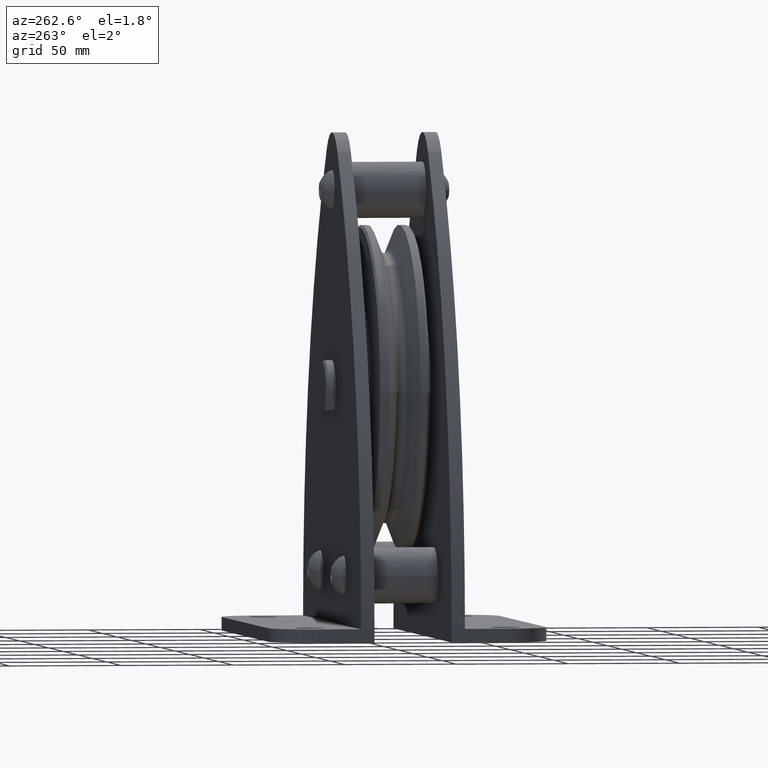
[diagram: clean part render]
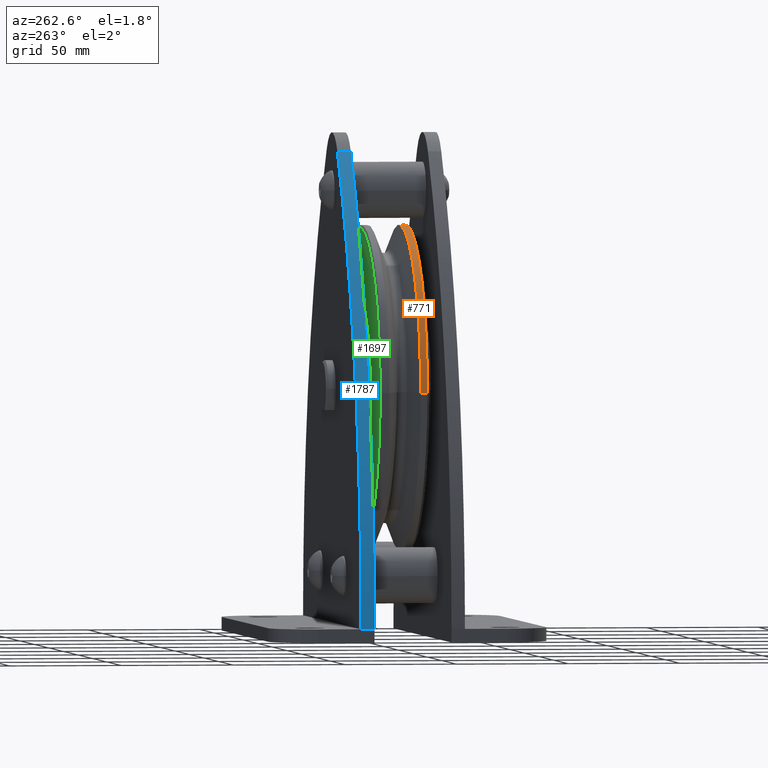
[diagram: same view with three faces highlighted in distinct colors, each labeled with its STEP entity id]
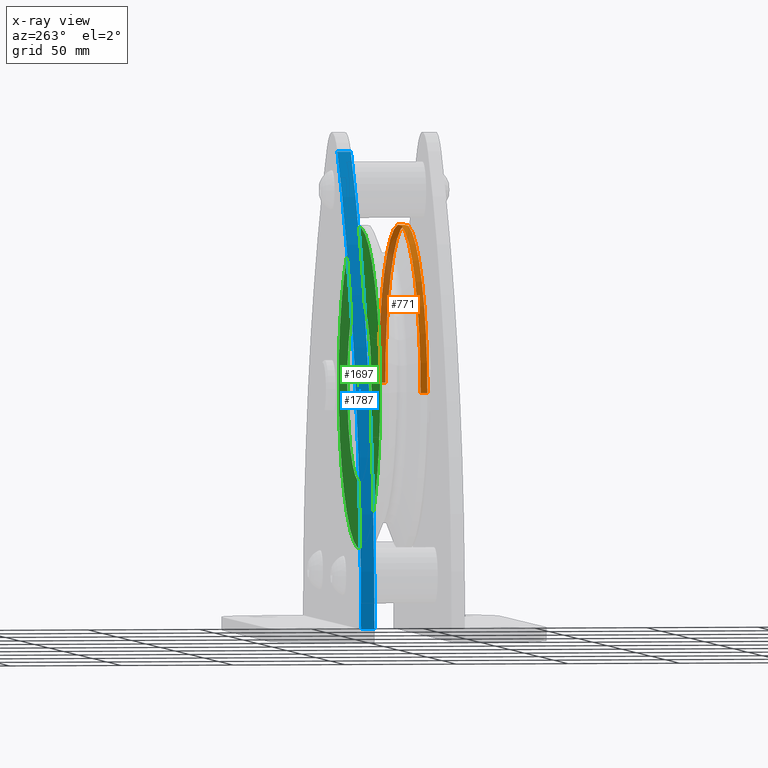
[diagram: x-ray of the same camera — body ghosted, the three highlighted faces saturated]
A machine part, auxiliary view with three faces highlighted in distinct colors.
The next image is the same camera in x-ray (body ghosted, the three faces saturated) — at least one of them is partly hidden behind the body in this view.
Their STEP definitions:

[orange] entity #771 — the highlighted cylindrical surface (partial cylindrical patch) has radius 72.5 mm, axis along (0, -1, 0).
#771=ADVANCED_FACE('',(#2164),#2165,.T.);
#2164=FACE_OUTER_BOUND('',#4270,.T.);
#2165=CYLINDRICAL_SURFACE('',#4271,72.5);
#4270=EDGE_LOOP('',(#6589,#6590,#6591,#6592));
#4271=AXIS2_PLACEMENT_3D('',#6593,#6594,#6595);
#6589=ORIENTED_EDGE('',*,*,#12768,.F.);
#6590=ORIENTED_EDGE('',*,*,#12716,.T.);
#6591=ORIENTED_EDGE('',*,*,#12769,.F.);
#6592=ORIENTED_EDGE('',*,*,#12764,.F.);
#6593=CARTESIAN_POINT('',(0.0,-8.490876,0.0));
#6594=DIRECTION('',(0.0,-1.0,0.0));
#6595=DIRECTION('',(1.0,0.0,0.0));
#12716=EDGE_CURVE('',#15322,#15324,#15326,.T.);
#12764=EDGE_CURVE('',#15397,#15400,#15401,.T.);
#12768=EDGE_CURVE('',#15322,#15397,#15406,.T.);
#12769=EDGE_CURVE('',#15400,#15324,#15407,.T.);
#15322=VERTEX_POINT('',#19774);
#15324=VERTEX_POINT('',#19777);
#15326=CIRCLE('',#19780,72.5);
#15397=VERTEX_POINT('',#19865);
#15400=VERTEX_POINT('',#19869);
#15401=CIRCLE('',#19870,72.5);
#15406=LINE('',#19876,#19877);
#15407=LINE('',#19878,#19879);
#19774=CARTESIAN_POINT('',(72.5,-6.981752,0.0));
#19777=CARTESIAN_POINT('',(-72.5,-6.981752,8.87868929381831E-015));
#19780=AXIS2_PLACEMENT_3D('',#26843,#26844,#26845);
#19865=CARTESIAN_POINT('',(72.5,-10.0,0.0));
#19869=CARTESIAN_POINT('',(-72.5,-10.0,8.87868929381831E-015));
#19870=AXIS2_PLACEMENT_3D('',#26924,#26925,#26926);
#19876=CARTESIAN_POINT('',(72.5,-8.490876,-8.87868929381831E-015));
#19877=VECTOR('',#26931,1.0);
#19878=CARTESIAN_POINT('',(-72.5,-8.490876,8.87868929381831E-015));
#19879=VECTOR('',#26932,1.0);
#26843=CARTESIAN_POINT('',(0.0,-6.981752,0.0));
#26844=DIRECTION('',(0.0,-1.0,0.0));
#26845=DIRECTION('',(1.0,0.0,0.0));
#26924=CARTESIAN_POINT('',(0.0,-10.0,0.0));
#26925=DIRECTION('',(0.0,-1.0,0.0));
#26926=DIRECTION('',(1.0,0.0,0.0));
#26931=DIRECTION('',(0.0,-1.0,0.0));
#26932=DIRECTION('',(-0.0,1.0,-0.0));

[blue] entity #1787 — the highlighted cylindrical surface (partial cylindrical patch) has radius 310 mm, axis along (0, 1, 0).
#1787=ADVANCED_FACE('',(#3755),#3756,.T.);
#3755=FACE_OUTER_BOUND('',#5861,.T.);
#3756=CYLINDRICAL_SURFACE('',#5862,309.999999979701);
#5861=EDGE_LOOP('',(#11550,#11551,#11552,#11553));
#5862=AXIS2_PLACEMENT_3D('',#11554,#11555,#11556);
#11550=ORIENTED_EDGE('',*,*,#14667,.T.);
#11551=ORIENTED_EDGE('',*,*,#14697,.F.);
#11552=ORIENTED_EDGE('',*,*,#14698,.T.);
#11553=ORIENTED_EDGE('',*,*,#14694,.T.);
#11554=CARTESIAN_POINT('',(209.999999979701,17.25,-103.9999999978));
#11555=DIRECTION('',(0.0,1.0,0.0));
#11556=DIRECTION('',(-1.0,0.0,-6.97995926336286E-012));
#14667=EDGE_CURVE('',#18207,#18205,#18208,.T.);
#14694=EDGE_CURVE('',#18247,#18207,#18248,.T.);
#14697=EDGE_CURVE('',#18251,#18205,#18252,.T.);
#14698=EDGE_CURVE('',#18251,#18247,#18253,.T.);
#18205=VERTEX_POINT('',#25944);
#18207=VERTEX_POINT('',#25947);
#18208=CIRCLE('',#25948,309.999999979701);
#18247=VERTEX_POINT('',#25999);
#18248=LINE('',#26000,#26001);
#18251=VERTEX_POINT('',#26004);
#18252=LINE('',#26005,#26006);
#18253=CIRCLE('',#26007,309.999999979701);
#25944=CARTESIAN_POINT('',(-100.0,23.25,-104.0));
#25947=CARTESIAN_POINT('',(-18.4210526299208,23.25,105.580110490116));
#25948=AXIS2_PLACEMENT_3D('',#29028,#29029,#29030);
#25999=CARTESIAN_POINT('',(-18.4210526299208,17.25,105.580110490116));
#26000=CARTESIAN_POINT('',(-18.4210526299208,17.25,105.580110490116));
#26001=VECTOR('',#29064,1.0);
#26004=CARTESIAN_POINT('',(-100.0,17.25,-104.0));
#26005=CARTESIAN_POINT('',(-100.0,17.25,-104.0));
#26006=VECTOR('',#29068,1.0);
#26007=AXIS2_PLACEMENT_3D('',#29069,#29070,#29071);
#29028=CARTESIAN_POINT('',(209.999999979701,23.25,-103.9999999978));
#29029=DIRECTION('',(0.0,-1.0,-0.0));
#29030=DIRECTION('',(-1.0,0.0,-6.97995926336286E-012));
#29064=DIRECTION('',(0.0,1.0,0.0));
#29068=DIRECTION('',(0.0,1.0,0.0));
#29069=CARTESIAN_POINT('',(209.999999979701,17.25,-103.9999999978));
#29070=DIRECTION('',(0.0,1.0,0.0));
#29071=DIRECTION('',(-1.0,0.0,-6.97995926336286E-012));

[green] entity #1697 — the highlighted planar face has unit normal (0, 1, 0).
#1697=ADVANCED_FACE('',(#3605,#3606),#3607,.T.);
#3605=FACE_OUTER_BOUND('',#5711,.T.);
#3606=FACE_BOUND('',#5712,.T.);
#3607=PLANE('',#5713);
#5711=EDGE_LOOP('',(#11134,#11135));
#5712=EDGE_LOOP('',(#11136,#11137));
#5713=AXIS2_PLACEMENT_3D('',#11138,#11139,#11140);
#11134=ORIENTED_EDGE('',*,*,#12732,.F.);
#11135=ORIENTED_EDGE('',*,*,#14546,.F.);
#11136=ORIENTED_EDGE('',*,*,#14544,.T.);
#11137=ORIENTED_EDGE('',*,*,#12738,.T.);
#11138=CARTESIAN_POINT('',(56.75,11.0,0.0));
#11139=DIRECTION('',(0.0,1.0,0.0));
#11140=DIRECTION('',(-1.0,0.0,-0.0));
#12732=EDGE_CURVE('',#15347,#15349,#15350,.T.);
#12738=EDGE_CURVE('',#15354,#15358,#15360,.T.);
#14544=EDGE_CURVE('',#15358,#15354,#18036,.T.);
#14546=EDGE_CURVE('',#15349,#15347,#18038,.T.);
#15347=VERTEX_POINT('',#19805);
#15349=VERTEX_POINT('',#19808);
#15350=CIRCLE('',#19809,71.5);
#15354=VERTEX_POINT('',#19814);
#15358=VERTEX_POINT('',#19818);
#15360=CIRCLE('',#19820,42.0);
#18036=CIRCLE('',#25726,42.0);
#18038=CIRCLE('',#25728,71.5);
#19805=CARTESIAN_POINT('',(71.5,11.0,0.0));
#19808=CARTESIAN_POINT('',(-71.5,11.0,8.75622461390357E-015));
#19809=AXIS2_PLACEMENT_3D('',#26869,#26870,#26871);
#19814=CARTESIAN_POINT('',(-42.0,11.0,5.14351655641888E-015));
#19818=CARTESIAN_POINT('',(42.0,11.0,0.0));
#19820=AXIS2_PLACEMENT_3D('',#26882,#26883,#26884);
#25726=AXIS2_PLACEMENT_3D('',#28873,#28874,#28875);
#25728=AXIS2_PLACEMENT_3D('',#28876,#28877,#28878);
#26869=CARTESIAN_POINT('',(0.0,11.0,0.0));
#26870=DIRECTION('',(0.0,-1.0,0.0));
#26871=DIRECTION('',(1.0,0.0,0.0));
#26882=CARTESIAN_POINT('',(0.0,11.0,0.0));
#26883=DIRECTION('',(0.0,-1.0,0.0));
#26884=DIRECTION('',(1.0,0.0,0.0));
#28873=CARTESIAN_POINT('',(0.0,11.0,0.0));
#28874=DIRECTION('',(0.0,-1.0,0.0));
#28875=DIRECTION('',(1.0,0.0,0.0));
#28876=CARTESIAN_POINT('',(0.0,11.0,0.0));
#28877=DIRECTION('',(0.0,-1.0,0.0));
#28878=DIRECTION('',(1.0,0.0,0.0));